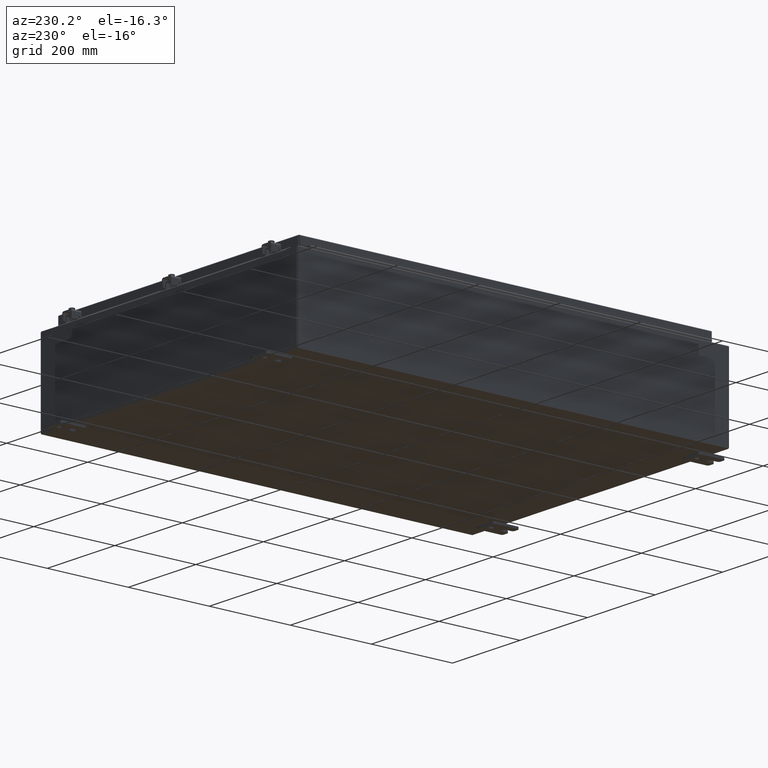
[diagram: clean part render]
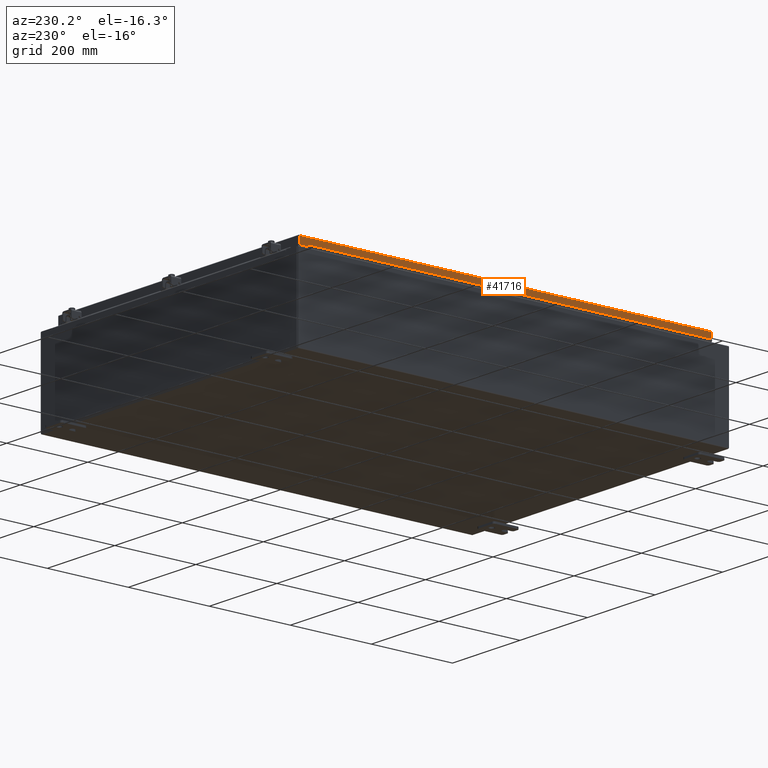
[diagram: same view with one face highlighted and labeled with its STEP entity id]
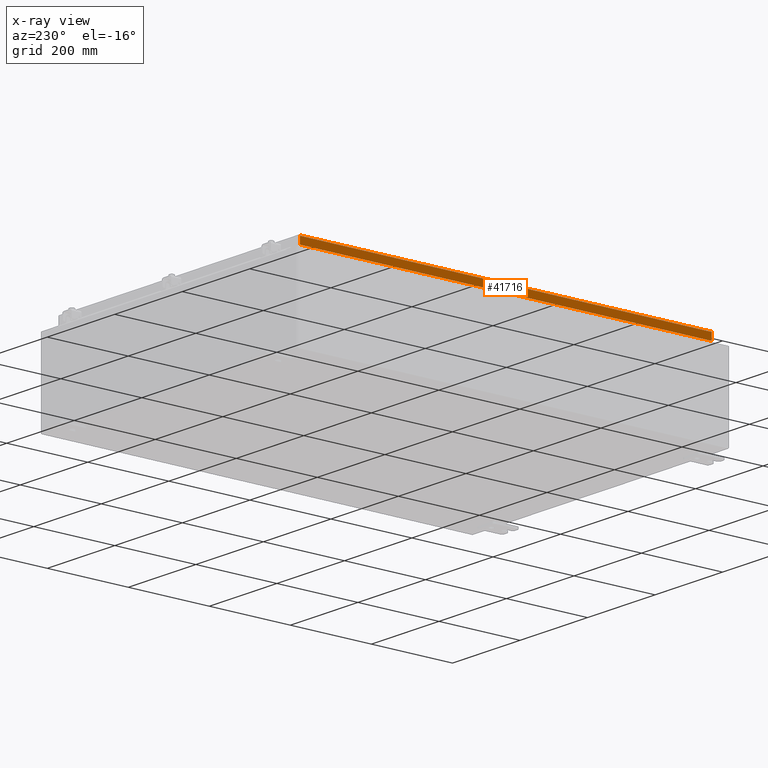
[diagram: x-ray of the same camera — body ghosted, the highlighted face saturated]
A machine part, auxiliary view. The second image highlights one B-rep face of the part: STEP entity #41716.
The next image is the same camera in x-ray: the body ghosted, the highlighted face saturated — about 0% of this face is hidden behind the body in this view.
In plain terms, the highlighted planar face has unit normal (1, 0, -0).
Its self-contained STEP definition (entity closure, byte-faithful):
#2367 = VERTEX_POINT ( 'NONE', #39538 ) ;
#4599 = CARTESIAN_POINT ( 'NONE',  ( -14.07799999999999800, -20.00515786437626900, -0.08770000000000007000 ) ) ;
#4854 = CARTESIAN_POINT ( 'NONE',  ( -14.07799999999999800, -20.09400000000000800, -0.08770000000000004200 ) ) ;
#4967 = VERTEX_POINT ( 'NONE', #30382 ) ;
#5568 = ORIENTED_EDGE ( 'NONE', *, *, #24820, .F. ) ;
#7186 = DIRECTION ( 'NONE',  ( 4.379057701015054300E-047, 1.000000000000000000, 1.223580767541473800E-016 ) ) ;
#7719 = DIRECTION ( 'NONE',  ( 3.712493866327201700E-031, -1.000000000000000000, -1.094373472637052200E-045 ) ) ;
#8058 = VECTOR ( 'NONE', #7186, 39.37007874015748100 ) ;
#9565 = CARTESIAN_POINT ( 'NONE',  ( -14.07799999999999800, -20.00515786437627200, -0.07469999999999976700 ) ) ;
#11914 = VECTOR ( 'NONE', #14781, 39.37007874015748100 ) ;
#12076 = AXIS2_PLACEMENT_3D ( 'NONE', #24162, #46728, #24340 ) ;
#13026 = LINE ( 'NONE', #20086, #11914 ) ;
#13354 = EDGE_CURVE ( 'NONE', #36581, #2367, #17788, .T. ) ;
#14781 = DIRECTION ( 'NONE',  ( -3.034122441942816500E-015, 6.982962677686267500E-015, -1.000000000000000000 ) ) ;
#15775 = VECTOR ( 'NONE', #7719, 39.37007874015748100 ) ;
#16837 = ORIENTED_EDGE ( 'NONE', *, *, #13354, .F. ) ;
#17788 = LINE ( 'NONE', #9565, #42461 ) ;
#17927 = LINE ( 'NONE', #35027, #8058 ) ;
#20086 = CARTESIAN_POINT ( 'NONE',  ( -14.07799999999999800, 20.00515786437627200, 1.826704601218439800E-013 ) ) ;
#20585 = PLANE ( 'NONE',  #12076 ) ;
#22674 = EDGE_CURVE ( 'NONE', #41617, #36581, #35780, .T. ) ;
#24162 = CARTESIAN_POINT ( 'NONE',  ( -14.07799999999999800, -5.226448865015432600E-030, 4.297518939368254200E-014 ) ) ;
#24340 = DIRECTION ( 'NONE',  ( -3.034122441942816500E-015, 0.0000000000000000000, -1.000000000000000000 ) ) ;
#24820 = EDGE_CURVE ( 'NONE', #2367, #4967, #17927, .T. ) ;
#26381 = EDGE_CURVE ( 'NONE', #41617, #4967, #13026, .T. ) ;
#27805 = EDGE_LOOP ( 'NONE', ( #42573, #43978, #5568, #16837 ) ) ;
#28121 = CARTESIAN_POINT ( 'NONE',  ( -14.07799999999999800, 20.00515786437627200, -0.08770000000000004200 ) ) ;
#30382 = CARTESIAN_POINT ( 'NONE',  ( -14.07799999999999900, 20.00515786437628000, -0.7949999999999948200 ) ) ;
#33908 = DIRECTION ( 'NONE',  ( -3.034122441942816500E-015, 6.982962677686267500E-015, -1.000000000000000000 ) ) ;
#35027 = CARTESIAN_POINT ( 'NONE',  ( -14.07799999999999900, -20.09400000000000800, -0.7949999999999997100 ) ) ;
#35780 = LINE ( 'NONE', #4854, #15775 ) ;
#36581 = VERTEX_POINT ( 'NONE', #4599 ) ;
#39538 = CARTESIAN_POINT ( 'NONE',  ( -14.07799999999999900, -20.00515786437626900, -0.7949999999999996000 ) ) ;
#41617 = VERTEX_POINT ( 'NONE', #28121 ) ;
#41716 = ADVANCED_FACE ( 'NONE', ( #44973 ), #20585, .F. ) ;
#42461 = VECTOR ( 'NONE', #33908, 39.37007874015748100 ) ;
#42573 = ORIENTED_EDGE ( 'NONE', *, *, #22674, .F. ) ;
#43978 = ORIENTED_EDGE ( 'NONE', *, *, #26381, .T. ) ;
#44973 = FACE_OUTER_BOUND ( 'NONE', #27805, .T. ) ;
#46728 = DIRECTION ( 'NONE',  ( 1.000000000000000000, 3.712493866327201300E-031, -3.034122441942816500E-015 ) ) ;